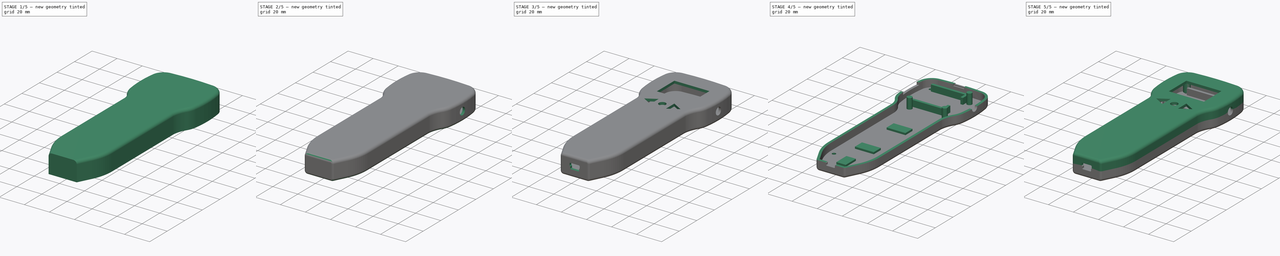
[diagram: build sequence overview — one tinted view per stage of 5, left to right]
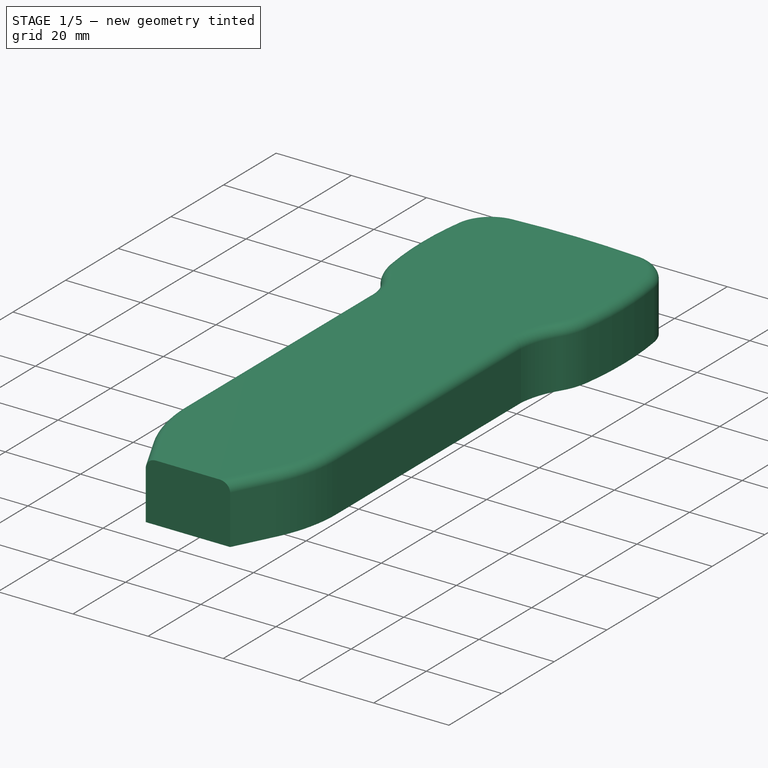
[diagram: stage 1 of 5 — iso view after this stage's code; geometry added in this stage tinted green]
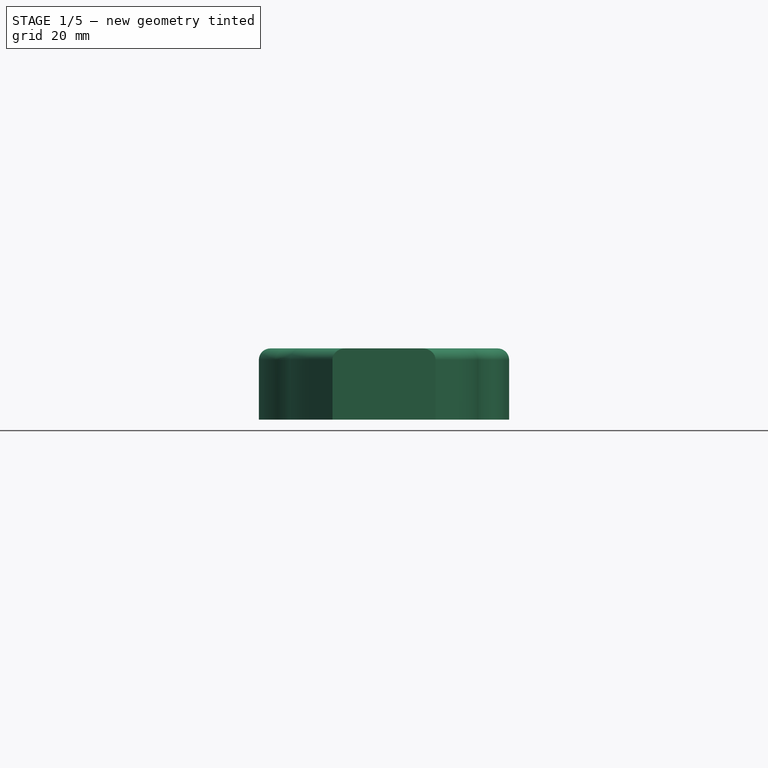
[diagram: stage 1 of 5 — front view after this stage's code; geometry added in this stage tinted green]
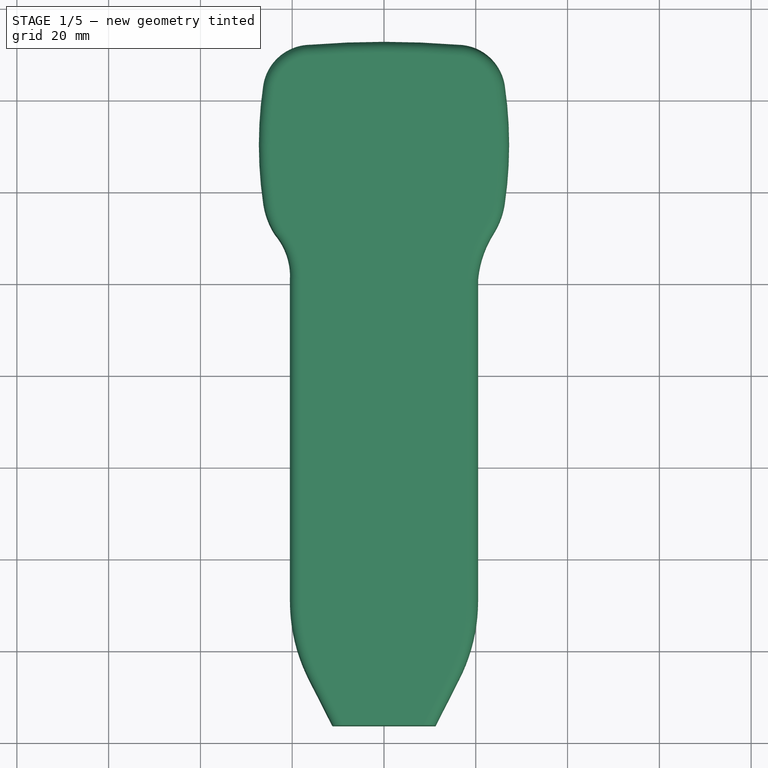
[diagram: stage 1 of 5 — top view after this stage's code; geometry added in this stage tinted green]
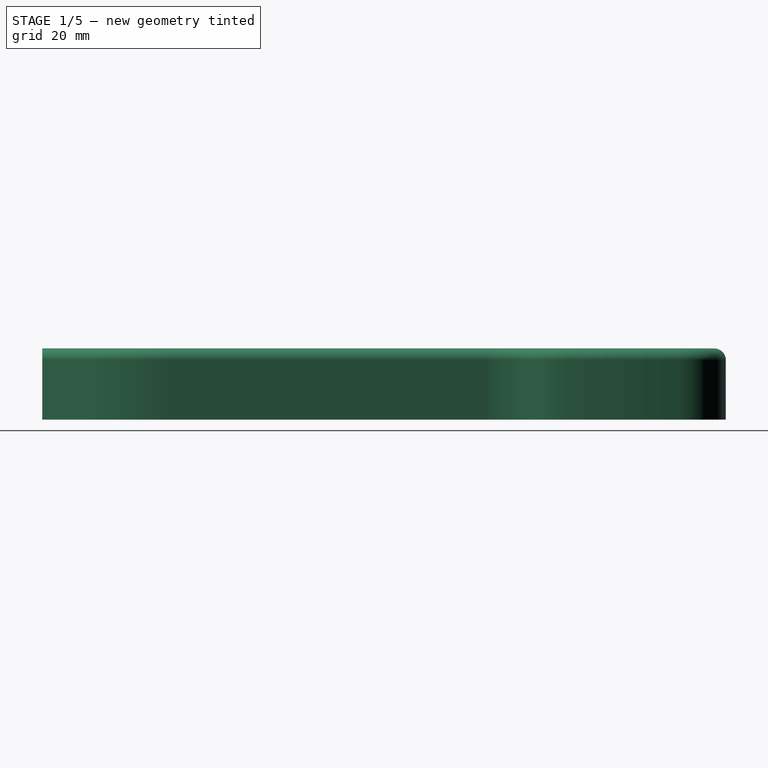
[diagram: stage 1 of 5 — right view after this stage's code; geometry added in this stage tinted green]
FCSTD DOCUMENT  (FreeCAD 0.16R5206 (Git))
Label: mote_inspector_v_2
License: CreativeCommons Attribution-ShareAlike
LicenseURL: http://creativecommons.org/licenses/by-sa/4.0/
objects: Sketcher::SketchObject×13, PartDesign::Pad×9, Part::Feature×8, Part::Cut×6, Part::Fillet×5, PartDesign::Pocket×4, Part::FeaturePython×3, App::DocumentObjectGroup×2, Part::Offset×1, Part::Mirroring×1
note: 63 computed .brp shape members not serialized (recipe doc carries the construction recipe); baked Part::Feature solids carry a one-line shape summary decoded from their .brp

FEATURE [Sketcher::SketchObject] Sketch031  label="Sketch01"
  sketch-geometry (20):
    g0: LineSegment [constr] StartX=-16 StartY=90 StartZ=0 EndX=16 EndY=90 EndZ=0
    g1: LineSegment StartX=18.5 StartY=41 StartZ=0 EndX=18.5 EndY=-29 EndZ=0
    g2: LineSegment StartX=-18.5 StartY=-29 StartZ=0 EndX=-18.5 EndY=41 EndZ=0
    g3: ArcOfCircle CenterX=15.936 CenterY=81.5002 CenterZ=0 NormalX=0 NormalY=0 NormalZ=1 Radius=8.5 StartAngle=0.147008 EndAngle=1.56326
    g4: ArcOfCircle CenterX=-15.936 CenterY=81.5002 CenterZ=0 NormalX=0 NormalY=0 NormalZ=1 Radius=8.5 StartAngle=1.57833 EndAngle=2.98878
    g5: ArcOfCircle CenterX=9.5 CenterY=60 CenterZ=0 NormalX=0 NormalY=0 NormalZ=1 Radius=15 StartAngle=5.72065 EndAngle=6.13558
    g6: ArcOfCircle CenterX=-9.5 CenterY=60 CenterZ=0 NormalX=0 NormalY=0 NormalZ=1 Radius=15 StartAngle=3.28919 EndAngle=3.70413
    g7: LineSegment [constr] StartX=15.936 StartY=81.5002 StartZ=0 EndX=-15.936 EndY=81.5002 EndZ=0
    g8: ArcOfCircle CenterX=42.9176 CenterY=38.9306 CenterZ=0 NormalX=0 NormalY=0 NormalZ=1 Radius=24.5051 StartAngle=2.57906 EndAngle=3.05704
    g9: ArcOfCircle CenterX=-34.482 CenterY=41.7593 CenterZ=0 NormalX=0 NormalY=0 NormalZ=1 Radius=16 StartAngle=6.23571 EndAngle=6.97774
    g10: LineSegment [constr] StartX=9.5 StartY=60 StartZ=0 EndX=-9.5 EndY=60 EndZ=0
    g11: ArcOfCircle CenterX=-59.7389 CenterY=70.2946 CenterZ=0 NormalX=0 NormalY=0 NormalZ=1 Radius=85 StartAngle=6.13558 EndAngle=6.43019
    g12: ArcOfCircle CenterX=59.7389 CenterY=70.2941 CenterZ=0 NormalX=0 NormalY=0 NormalZ=1 Radius=85 StartAngle=2.994 EndAngle=3.28919
    g13: LineSegment [constr] StartX=-24.3369 StartY=82.7941 StartZ=0 EndX=-24.3369 EndY=57.7941 EndZ=0
    g14: ArcOfCircle CenterX=-17.3536 CenterY=-29 CenterZ=0 NormalX=0 NormalY=0 NormalZ=1 Radius=35.8536 StartAngle=5.81289 EndAngle=6.28319
    g15: ArcOfCircle CenterX=17.3536 CenterY=-29 CenterZ=0 NormalX=0 NormalY=0 NormalZ=1 Radius=35.8536 StartAngle=3.14159 EndAngle=3.61189
    g16: ArcOfCircle CenterX=0 CenterY=-109.359 CenterZ=0 NormalX=0 NormalY=0 NormalZ=1 Radius=200 StartAngle=1.49071 EndAngle=1.65088
    g17: LineSegment StartX=14.6075 StartY=-45.2472 StartZ=0 EndX=10 EndY=-54.3109 EndZ=0
    g18: LineSegment StartX=-14.6075 StartY=-45.2472 StartZ=0 EndX=-10 EndY=-54.3109 EndZ=0
    g19: LineSegment StartX=-10 StartY=-54.3109 StartZ=0 EndX=10 EndY=-54.3109 EndZ=0
  constraints (62):
    c: Horizontal(g0)
    c: Vertical(g1)
    c: Equal(g6,g5)
    c: Symmetric(g0,g0,g-2)
    c: DistanceX(g0) = 32
    c: Radius(g4) = 8.5
    c: Horizontal(g7)
    c: Coincident(g4,g7)
    c: Coincident(g3,g7)
    c: DistanceY(g0) = 90
    c: Symmetric(g2,g1,g-2)
    c: Coincident(g8,g1)
    c: Coincident(g8,g5)
    c: Tangent(g8,g5)
    c: Coincident(g9,g2)
    c: Coincident(g9,g6)
    c: DistanceX(g1,g2) = -37
    c: Radius(g9) = 16
    c: Radius(g5) = 15
    c: Equal(g1,g2)
    c: Coincident(g10,g5)
    c: Coincident(g10,g6)
    c: Symmetric(g6,g5,g-2)
    c: DistanceX(g10) = -19
    c: Coincident(g11,g3)
    c: Coincident(g11,g5)
    c: Tangent(g3,g11)
    c: Tangent(g5,g11)
    c: DistanceY(g6) = 60
    c: Radius(g11) = 85
    c: Coincident(g12,g4)
    c: Coincident(g12,g6)
    c: Equal(g12,g11)
    c: Coincident(g13,g4)
    c: Coincident(g13,g6)
    c: Vertical(g13)
    c: Coincident(g4,g0)
    c: Coincident(g3,g0)
    c: Equal(g3,g4)
    c: DistanceY(g13) = -25
    c: Tangent(g1,g14) = 1.5708
    c: Tangent(g2,g15) = 1.5708
    c: Symmetric(g6,g5,g-2)
    c: DistanceY(g2) = 41
    c: DistanceY(g5) = 52
    c: Symmetric(g14,g15,g-2)
    c: Coincident(g16,g0)
    c: Coincident(g16,g0)
    c: Radius(g16) = 200
    c: Coincident(g17,g14)
    c: Coincident(g18,g15)
    c: Coincident(g19,g18)
    c: Coincident(g19,g17)
    c: Horizontal(g19)
    c: Symmetric(g17,g18,g-2)
    c: Tangent(g17,g14)
    c: DistanceY(g1) = -70
    c: DistanceX(g19) = 20
    c: Tangent(g6,g12)
    c: DistanceY(g17) = -54.3109
    c: Equal(g18,g17)
    c: Distance(g18) = 10.1676
FEATURE [PartDesign::Pad] Pad
  Length = 11.5
  Length2 = 100
  Midplane = true
  Sketch = -> Sketch031
  Type = 0
FEATURE [Part::Feature] Part__Feature  label="battery"
  Placement = pos=(1.7475e-05,2.94176,-0.578884) rot=(0,0,1;0rad)
  shape: bbox 34.3 x 64.5 x 5 mm, 10 faces (baked)
FEATURE [Part::Feature] Part__Feature001  label="oled_2864"
  Placement = pos=(4.00451e-06,67.6306,4.23111) rot=(0,0,1;0rad)
  shape: bbox 35.7 x 35.7 x 4.75 mm, 19 faces (baked)
FEATURE [Part::Feature] Part__Feature003  label="battery_charger"
  Placement = pos=(1.34702e-05,-41.4823,-2.55) rot=(0,0,1;0rad)
  shape: bbox 19.2 x 27.41 x 5.37 mm, 28 faces (baked)
FEATURE [Part::Feature] Part__Feature004  label="moteino"
  Placement = pos=(-7.66436,70.8293,-2.64239) rot=(0,0,-1;1.5708rad)
  shape: bbox 41 x 23.4 x 5.78 mm, 12 faces (baked)
FEATURE [Part::Feature] Part__Feature005  label="antena_connector"
  Placement = pos=(32.533,68.7327,0.110749) rot=(0,-1,0;1.5708rad)
  shape: bbox 11.5 x 8 x 9.238 mm, 10 faces (baked)
FEATURE [Part::Feature] Part__Feature006  label="buttons"
  Placement = pos=(0,43.5931,1.20382) rot=(0,0,1;0rad)
  shape: bbox 30.8 x 10.8 x 6.6 mm, 27 faces (baked)
FEATURE [Part::Feature] Part__Feature007  label="kill_switch"
  Placement = pos=(-0.913024,85.9801,0.513217) rot=(0,0.707107,0.707107;3.14159rad)
  shape: bbox 12.2 x 6.9 x 9 mm, 16 faces (baked)
FEATURE [Part::FeaturePython] Clone  label="Clone of Pad"  # Draft clone (typed FeaturePython)
  Objects = -> [Pad]
  Scale = (1,1,1)
FEATURE [App::DocumentObjectGroup] Construcci__n
  Group = -> [Clone]
FEATURE [Part::Offset] Offset
  Fill = false
  Intersection = false
  Join = 2
  Mode = 0
  SelfIntersection = false
  Source = -> Clone
  Value = 2
FEATURE [Part::Cut] Cut
  Base = -> Offset
  Tool = -> Pad
FEATURE [Part::Fillet] Fillet
  Base = -> Cut
  Edges = 1 edges r=2.5: [Edge8]
FEATURE [Part::Fillet] Fillet001
  Base = -> Fillet
  Edges = 1 edges r=2.45: [Edge38]
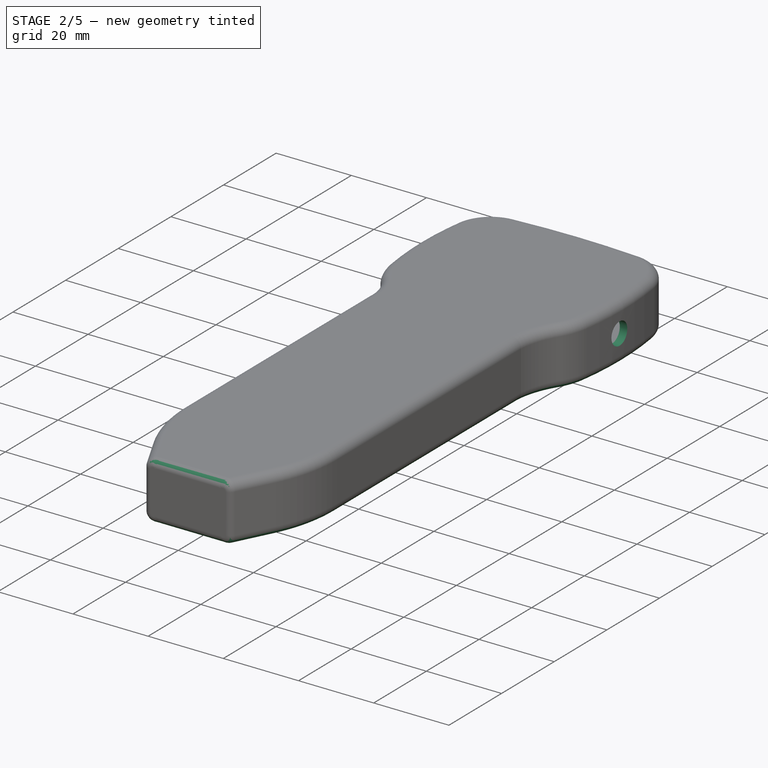
[diagram: stage 2 of 5 — iso view after this stage's code; geometry added in this stage tinted green]
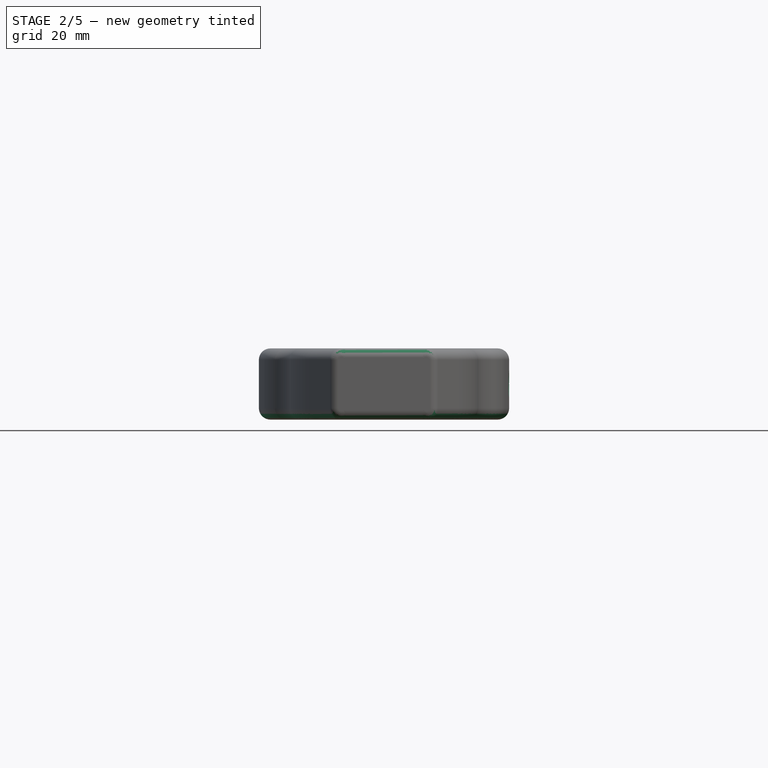
[diagram: stage 2 of 5 — front view after this stage's code; geometry added in this stage tinted green]
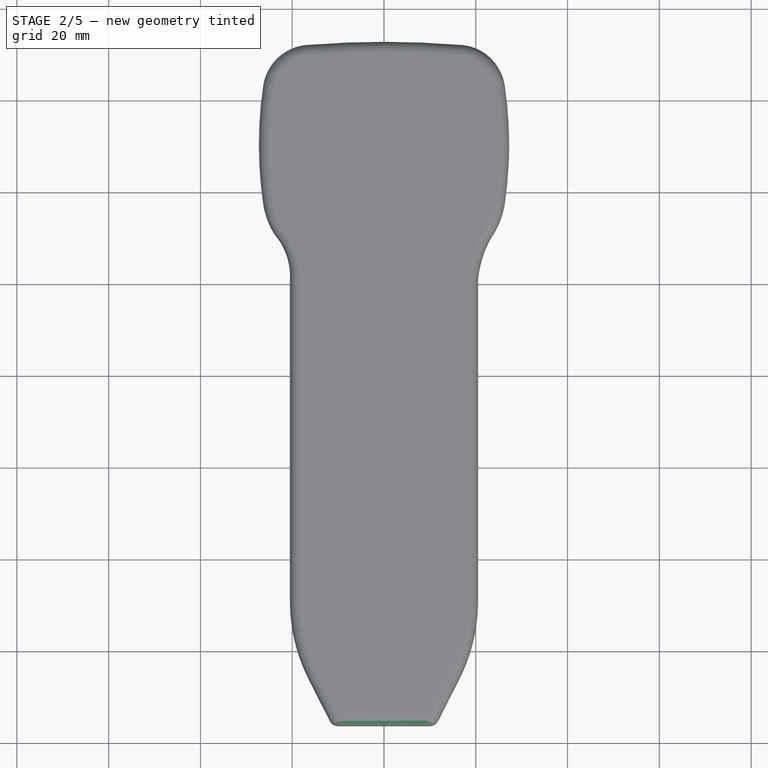
[diagram: stage 2 of 5 — top view after this stage's code; geometry added in this stage tinted green]
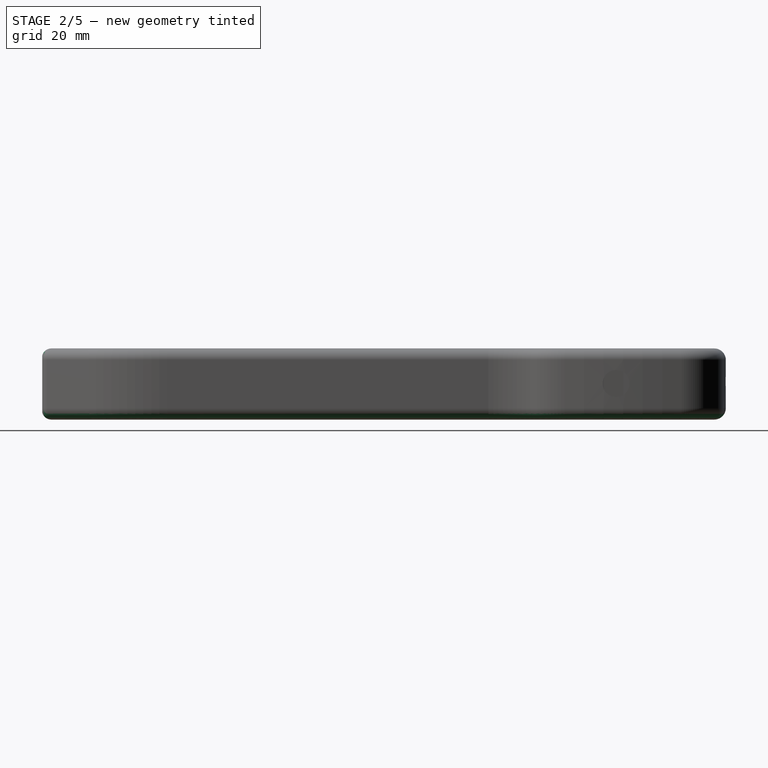
[diagram: stage 2 of 5 — right view after this stage's code; geometry added in this stage tinted green]
FEATURE [Part::FeaturePython] Clone004  label="Clone of switch001"  # WARN: FeaturePython — macro-defined, semantics opaque (R4)
  Placement = pos=(0,0,1) rot=(0,0,1;0rad)
  Scale = (1,1,1)
FEATURE [Part::Fillet] Fillet002
  Base = -> Fillet001
  Edges = 1 edges r=2.5: [Edge67]
FEATURE [Part::Fillet] Fillet003
  Base = -> Fillet002
  Edges = 1 edges r=2.45: [Edge17]
FEATURE [Part::Fillet] Fillet004
  Base = -> Fillet003
  Edges = 1 edges r=2: [Edge1]
FEATURE [Part::Feature] Part__Feature008  label="antena_connector001"
  Placement = pos=(32.533,68.7327,0.110749) rot=(0,-1,0;1.5708rad)
  shape: bbox 11.5 x 8 x 9.238 mm, 10 faces (baked)
FEATURE [Part::Cut] Cut001
  Base = -> Fillet004
  Tool = -> Part__Feature008
FEATURE [Part::Cut] Cut002
  Base = -> Cut001
  Tool = -> Clone004
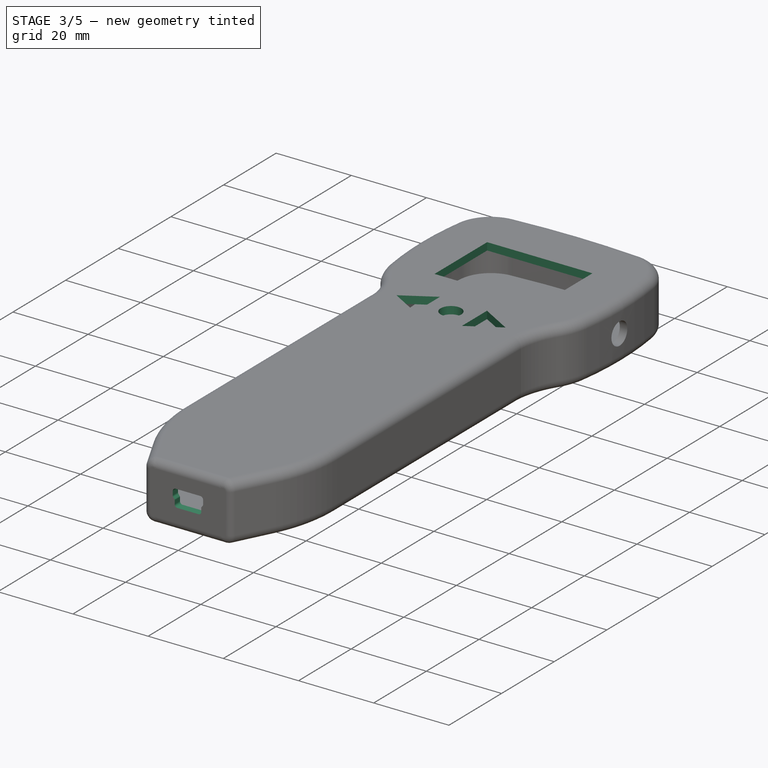
[diagram: stage 3 of 5 — iso view after this stage's code; geometry added in this stage tinted green]
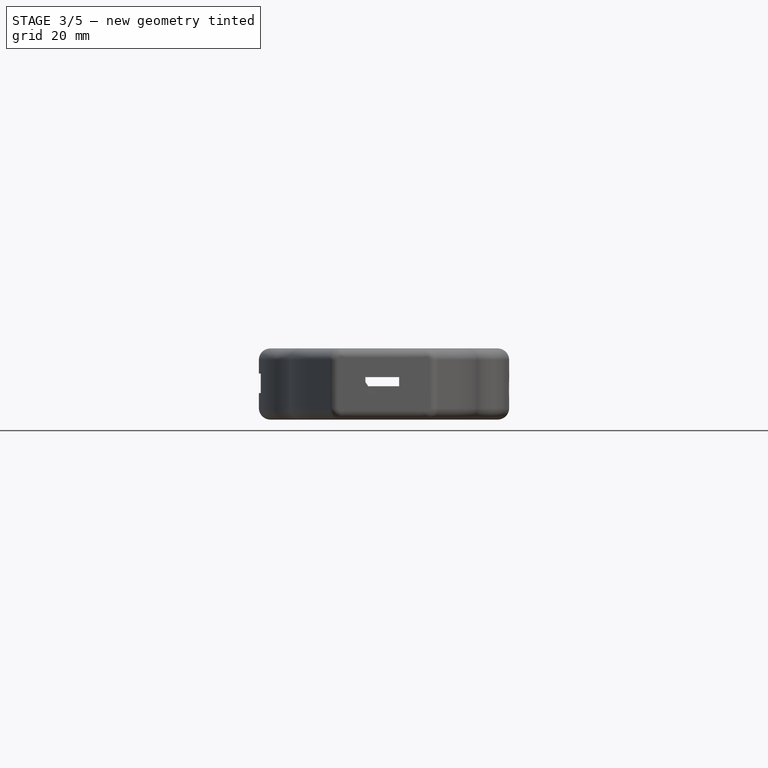
[diagram: stage 3 of 5 — front view after this stage's code; geometry added in this stage tinted green]
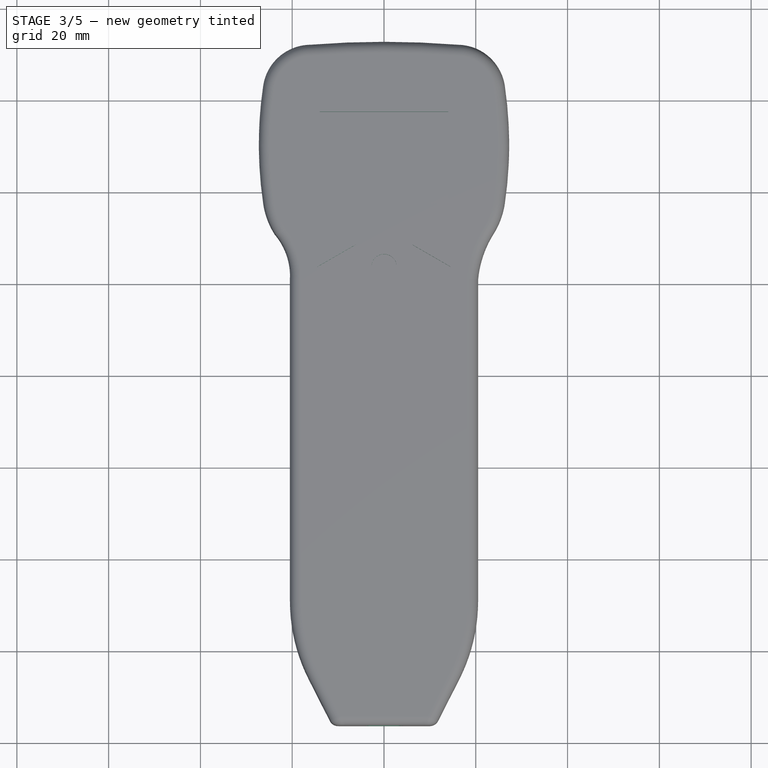
[diagram: stage 3 of 5 — top view after this stage's code; geometry added in this stage tinted green]
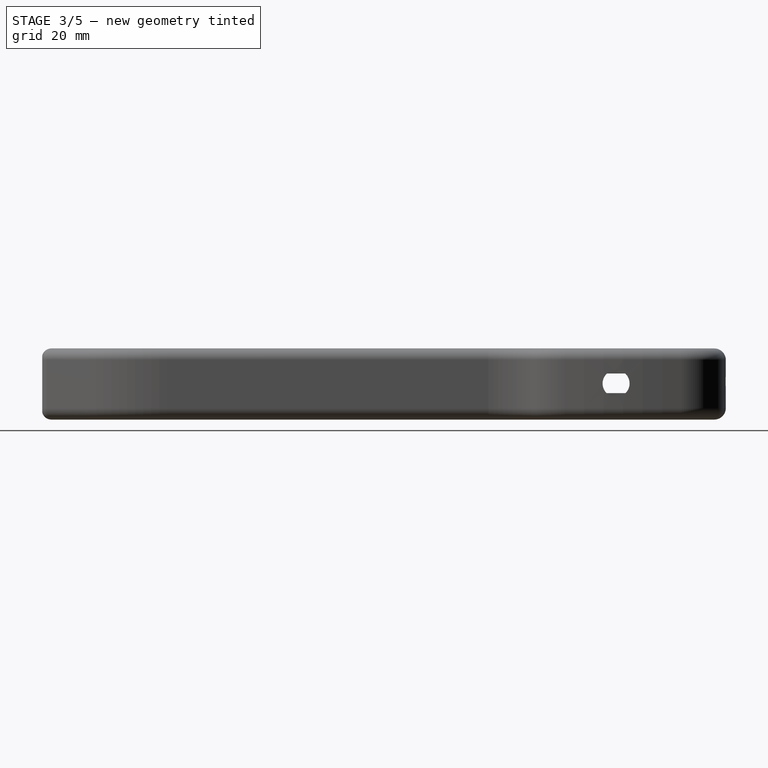
[diagram: stage 3 of 5 — right view after this stage's code; geometry added in this stage tinted green]
FEATURE [Sketcher::SketchObject] Sketch034  label="Sketch04"
  Placement = pos=(-29,0,0) rot=(0.57735,-0.57735,-0.57735;2.0944rad)
  sketch-geometry (4):
    g0: LineSegment StartX=-79.8 StartY=2.3 StartZ=0 EndX=-61.8 EndY=2.3 EndZ=0
    g1: LineSegment StartX=-61.8 StartY=2.3 StartZ=0 EndX=-61.8 EndY=-2 EndZ=0
    g2: LineSegment StartX=-61.8 StartY=-2 StartZ=0 EndX=-79.8 EndY=-2 EndZ=0
    g3: LineSegment StartX=-79.8 StartY=-2 StartZ=0 EndX=-79.8 EndY=2.3 EndZ=0
  constraints (12):
    c: Coincident(g0,g1)
    c: Coincident(g1,g2)
    c: Coincident(g2,g3)
    c: Coincident(g3,g0)
    c: Horizontal(g0)
    c: Horizontal(g2)
    c: Vertical(g1)
    c: Vertical(g3)
    c: DistanceY(g1) = -4.3
    c: DistanceX(g0) = 18
    c: DistanceX(g0) = -61.8
    c: DistanceY(g0) = 2.3
FEATURE [PartDesign::Pad] Pad001
  Length = 10
  Length2 = 100
  Placement = pos=(-29,0,0) rot=(0.57735,-0.57735,-0.57735;2.0944rad)
  Reversed = true
  Sketch = -> Sketch034
  Type = 0
FEATURE [Part::Cut] Cut003
  Base = -> Cut002
  Tool = -> Pad001
FEATURE [Sketcher::SketchObject] Sketch032  label="Sketch02"
  Placement = pos=(0,0,7.75) rot=(0,0,1;0rad)
  Support = -> Cut003 [Face21]
  sketch-geometry (16):
    g0: LineSegment StartX=-14 StartY=77.35 StartZ=0 EndX=14 EndY=77.35 EndZ=0
    g1: LineSegment StartX=14 StartY=77.35 StartZ=0 EndX=14 EndY=57.35 EndZ=0
    g2: LineSegment StartX=14 StartY=57.35 StartZ=0 EndX=-14 EndY=57.35 EndZ=0
    g3: LineSegment StartX=-14 StartY=57.35 StartZ=0 EndX=-14 EndY=77.35 EndZ=0
    g4: Circle CenterX=0 CenterY=43.6 CenterZ=0 NormalX=0 NormalY=0 NormalZ=1 Radius=2.75
    g5: Circle [constr] CenterX=-9 CenterY=43.6 CenterZ=0 NormalX=0 NormalY=0 NormalZ=1 Radius=2.75
    g6: Circle [constr] CenterX=9 CenterY=43.6 CenterZ=0 NormalX=0 NormalY=0 NormalZ=1 Radius=2.75
    g7: LineSegment [constr] StartX=-9 StartY=43.6 StartZ=0 EndX=9 EndY=43.6 EndZ=0
    g8: LineSegment StartX=-6.25 StartY=38.8369 StartZ=0 EndX=-6.25 EndY=48.3631 EndZ=0
    g9: LineSegment StartX=-6.25 StartY=48.3631 StartZ=0 EndX=-14.5 EndY=43.6 EndZ=0
    g10: LineSegment StartX=-14.5 StartY=43.6 StartZ=0 EndX=-6.25 EndY=38.8369 EndZ=0
    g11: Circle [constr] CenterX=-9 CenterY=43.6 CenterZ=0 NormalX=0 NormalY=0 NormalZ=1 Radius=5.5
    g12: LineSegment StartX=6.25 StartY=38.8369 StartZ=0 EndX=14.5 EndY=43.6 EndZ=0
    g13: LineSegment StartX=14.5 StartY=43.6 StartZ=0 EndX=6.25 EndY=48.3631 EndZ=0
    g14: LineSegment StartX=6.25 StartY=48.3631 StartZ=0 EndX=6.25 EndY=38.8369 EndZ=0
    g15: Circle [constr] CenterX=9 CenterY=43.6 CenterZ=0 NormalX=0 NormalY=0 NormalZ=1 Radius=5.5
  constraints (45):
    c: Coincident(g0,g1)
    c: Coincident(g1,g2)
    c: Coincident(g2,g3)
    c: Coincident(g3,g0)
    c: Horizontal(g0)
    c: Horizontal(g2)
    c: Vertical(g1)
    c: Vertical(g3)
    c: Symmetric(g0,g0,g-2)
    c: DistanceX(g0) = 28
    c: DistanceY(g1) = -20
    c: DistanceY(g1) = 57.35
    c: PointOnObject(g4,g-2)
    c: Equal(g5,g4)
    c: Equal(g4,g6)
    c: Coincident(g7,g5)
    c: Horizontal(g7)
    c: Coincident(g7,g6)
    c: PointOnObject(g4,g7)
    c: DistanceY(g4) = 43.6
    c: Symmetric(g6,g5,g-2)
    c: DistanceX(g6) = 9
    c: Radius(g4) = 2.75
    c: Coincident(g8,g9)
    c: Coincident(g9,g10)
    c: Coincident(g10,g8)
    c: Equal(g8,g9)
    c: Equal(g8,g10)
    c: PointOnObject(g8,g11)
    c: PointOnObject(g9,g11)
    c: PointOnObject(g10,g11)
    c: Coincident(g11,g5)
    c: Coincident(g12,g13)
    c: Coincident(g13,g14)
    c: Coincident(g14,g12)
    c: Equal(g12,g13)
    c: Equal(g12,g14)
    c: PointOnObject(g12,g15)
    c: PointOnObject(g13,g15)
    c: PointOnObject(g14,g15)
    c: Coincident(g15,g6)
    c: Vertical(g8)
    c: Vertical(g14)
    c: Tangent(g8,g5)
    c: Tangent(g14,g6)
FEATURE [PartDesign::Pocket] Pocket
  Length = 5
  Sketch = -> Sketch032
  Type = 0
FEATURE [Sketcher::SketchObject] Sketch033  label="Sketch03"
  Placement = pos=(0,-56.3109,0) rot=(1,0,0;1.5708rad)
  Support = -> Pocket [Face1]
  sketch-geometry (16):
    g0: LineSegment StartX=-3.25 StartY=2.4 StartZ=0 EndX=3.25 EndY=2.4 EndZ=0
    g1: LineSegment StartX=4.05 StartY=1.6 StartZ=0 EndX=4.05 EndY=0.6 EndZ=0
    g2: LineSegment StartX=3.52669 StartY=-0.423313 StartZ=0 EndX=3.52669 EndY=-1.42331 EndZ=0
    g3: LineSegment StartX=2.85 StartY=-2.1 StartZ=0 EndX=-2.85 EndY=-2.1 EndZ=0
    g4: LineSegment StartX=-3.52669 StartY=-1.42331 StartZ=0 EndX=-3.52669 EndY=-0.423313 EndZ=0
    g5: LineSegment StartX=-4.05 StartY=0.6 StartZ=0 EndX=-4.05 EndY=1.6 EndZ=0
    g6: ArcOfCircle CenterX=-3.25 CenterY=1.6 CenterZ=0 NormalX=0 NormalY=0 NormalZ=1 Radius=0.8 StartAngle=1.5708 EndAngle=3.14159
    g7: ArcOfCircle CenterX=-2.85 CenterY=-1.42331 CenterZ=0 NormalX=0 NormalY=0 NormalZ=1 Radius=0.676687 StartAngle=3.14159 EndAngle=4.71239
    g8: ArcOfCircle CenterX=2.85 CenterY=-1.42331 CenterZ=0 NormalX=0 NormalY=0 NormalZ=1 Radius=0.676687 StartAngle=4.71239 EndAngle=6.28319
    g9: ArcOfCircle CenterX=3.25 CenterY=1.6 CenterZ=0 NormalX=0 NormalY=0 NormalZ=1 Radius=0.8 StartAngle=2.1548e-08 EndAngle=1.5708
    g10: ArcOfCircle CenterX=3.36851 CenterY=0.6 CenterZ=0 NormalX=0 NormalY=0 NormalZ=1 Radius=0.681493 StartAngle=5.61668 EndAngle=6.28319
    g11: ArcOfCircle CenterX=3.91786 CenterY=-0.423313 CenterZ=0 NormalX=0 NormalY=0 NormalZ=1 Radius=0.39117 StartAngle=2.26963 EndAngle=3.14159
    g12: LineSegment StartX=3.90415 StartY=0.178672 StartZ=0 EndX=3.66621 EndY=-0.123836 EndZ=0
    g13: ArcOfCircle CenterX=-3.36851 CenterY=0.6 CenterZ=0 NormalX=0 NormalY=0 NormalZ=1 Radius=0.681493 StartAngle=3.14159 EndAngle=3.91953
    g14: LineSegment StartX=-3.85398 StartY=0.12172 StartZ=0 EndX=-3.61292 EndY=-0.17831 EndZ=0
    g15: ArcOfCircle CenterX=-3.91786 CenterY=-0.423313 CenterZ=0 NormalX=0 NormalY=0 NormalZ=1 Radius=0.39117 StartAngle=1.0513e-08 EndAngle=0.67684
  constraints (55):
    c: Vertical(g2)
    c: Vertical(g5)
    c: Coincident(g6,g0)
    c: Coincident(g6,g5)
    c: Vertical(g1)
    c: Vertical(g4)
    c: Coincident(g7,g4)
    c: Coincident(g7,g3)
    c: Coincident(g8,g2)
    c: Coincident(g8,g3)
    c: Coincident(g9,g0)
    c: Coincident(g9,g1)
    c: Coincident(g10,g1)
    c: Tangent(g0,g9)
    c: Tangent(g6,g0)
    c: Tangent(g8,g2)
    c: Tangent(g3,g8)
    c: Tangent(g7,g3)
    c: Tangent(g4,g7)
    c: Tangent(g5,g6)
    c: Tangent(g1,g9)
    c: Tangent(g10,g1)
    c: Coincident(g11,g2)
    c: Tangent(g11,g2)
    c: Equal(g1,g5)
    c: Equal(g2,g4)
    c: Symmetric(g0,g0,g-2)
    c: Symmetric(g3,g3,g-2)
    c: DistanceX(g3) = -5.7
    c: DistanceX(g0) = 6.5
    c: DistanceY(g3) = -2.1
    c: DistanceY(g0) = 2.4
    c: Radius(g9) = 0.8
    c: Equal(g9,g6)
    c: Equal(g5,g1)
    c: Coincident(g12,g10)
    c: Coincident(g12,g11)
    c: DistanceY(g1) = -1
    c: Radius(g11) = 0.39117
    c: Distance(g12) = 0.384874
    c: Radius(g10) = 0.681493
    c: DistanceY(g2) = -1
    c: Radius(g8) = 0.676687
    c: Equal(g7,g8)
    c: Coincident(g13,g5)
    c: Coincident(g14,g13)
    c: Coincident(g15,g14)
    c: Coincident(g15,g4)
    c: Tangent(g4,g15)
    c: Tangent(g13,g5)
    c: Equal(g15,g11)
    c: Equal(g14,g12)
    c: Equal(g13,g10)
    c: Tangent(g14,g15)
    c: Tangent(g12,g10)
FEATURE [PartDesign::Pocket] Pocket001
  Length = 5
  Sketch = -> Sketch033
  Type = 0
FEATURE [Part::FeaturePython] Clone005  label="Clone of Pocket001"  # Draft clone (typed FeaturePython)
  Objects = -> [Pocket001]
  Scale = (1,1,1)
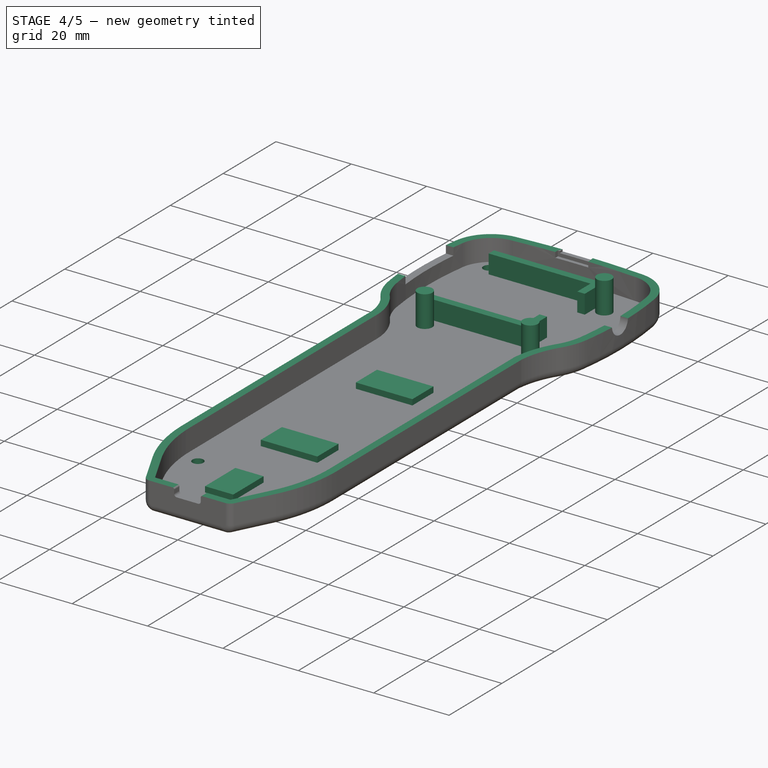
[diagram: stage 4 of 5 — iso view after this stage's code; geometry added in this stage tinted green]
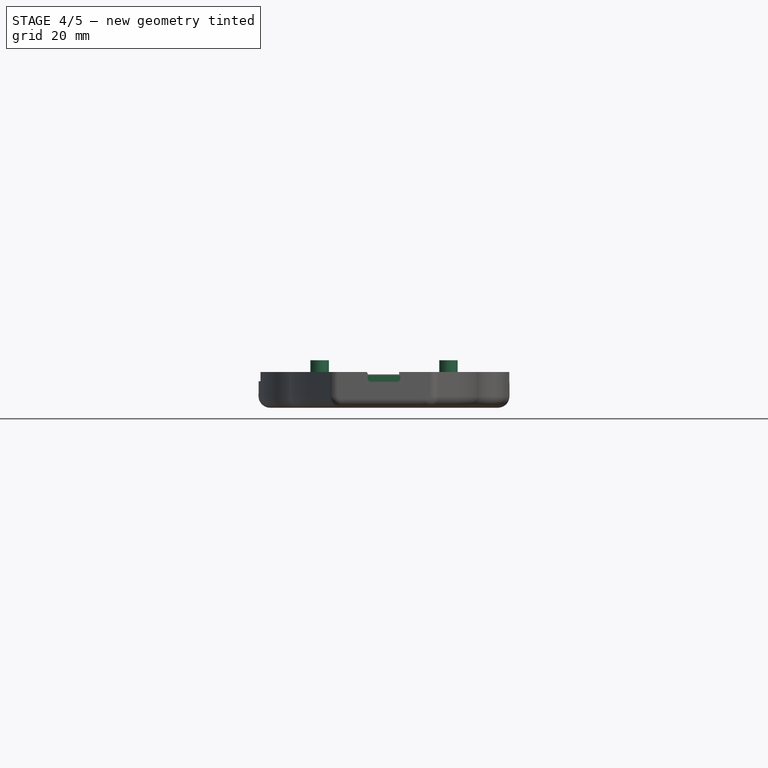
[diagram: stage 4 of 5 — front view after this stage's code; geometry added in this stage tinted green]
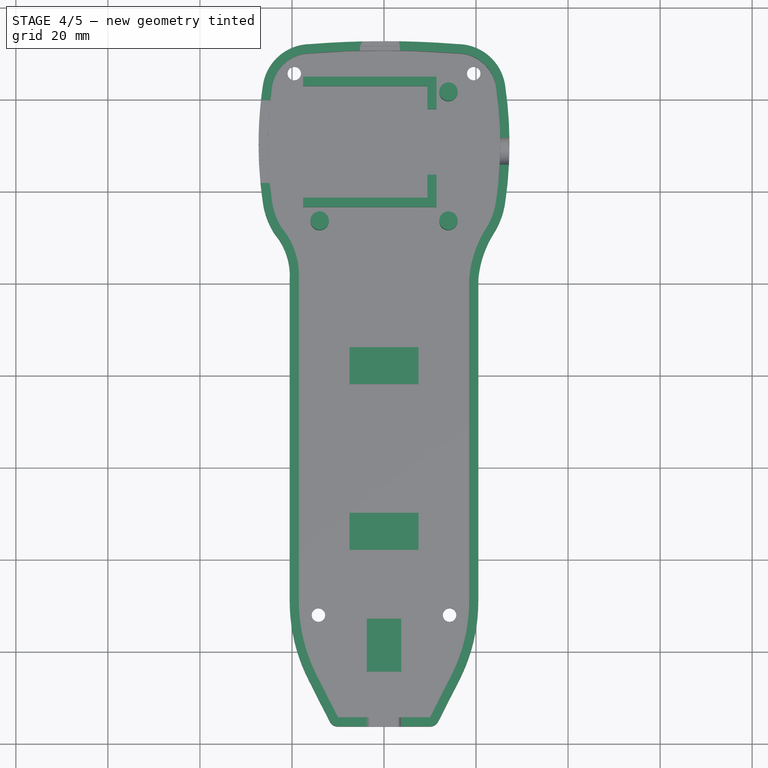
[diagram: stage 4 of 5 — top view after this stage's code; geometry added in this stage tinted green]
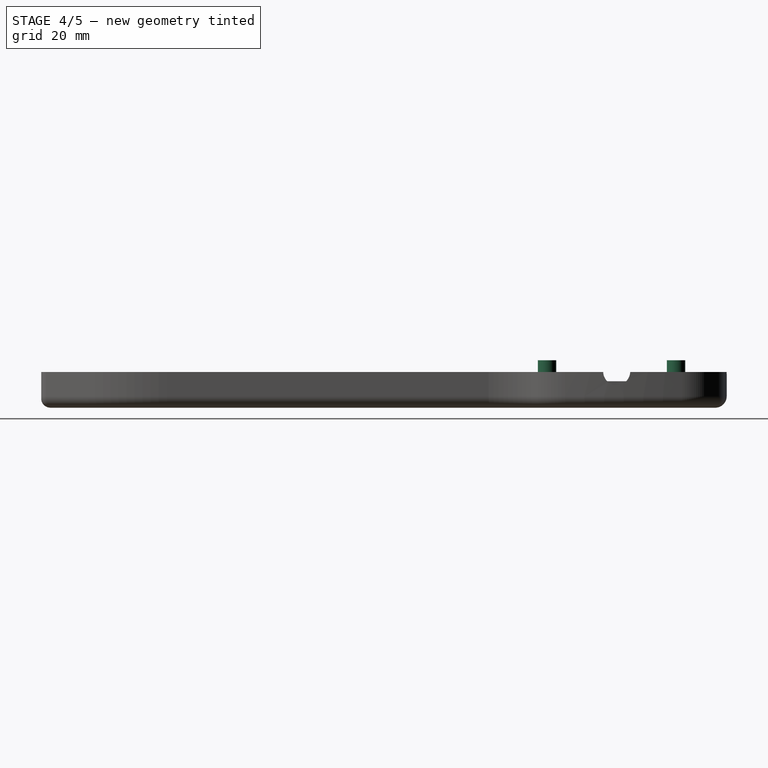
[diagram: stage 4 of 5 — right view after this stage's code; geometry added in this stage tinted green]
FEATURE [Sketcher::SketchObject] Sketch
  sketch-geometry (4):
    g0: LineSegment StartX=-35 StartY=97.4 StartZ=0 EndX=35 EndY=97.4 EndZ=0
    g1: LineSegment StartX=35 StartY=97.4 StartZ=0 EndX=35 EndY=-62.6 EndZ=0
    g2: LineSegment StartX=35 StartY=-62.6 StartZ=0 EndX=-35 EndY=-62.6 EndZ=0
    g3: LineSegment StartX=-35 StartY=-62.6 StartZ=0 EndX=-35 EndY=97.4 EndZ=0
  constraints (12):
    c: Coincident(g0,g1)
    c: Coincident(g1,g2)
    c: Coincident(g2,g3)
    c: Coincident(g3,g0)
    c: Horizontal(g0)
    c: Horizontal(g2)
    c: Vertical(g1)
    c: Vertical(g3)
    c: DistanceX(g0) = 70
    c: DistanceY(g1) = -160
    c: DistanceY(g0) = 97.4
    c: Symmetric(g0,g0,g-2)
FEATURE [PartDesign::Pad] Pad002
  Length = 10
  Length2 = 100
  Sketch = -> Sketch
  Type = 0
FEATURE [Part::Cut] Cut004
  Base = -> Clone005
  Tool = -> Pad002
FEATURE [PartDesign::Pad] Pad004
  Length = 5
  Length2 = 100
  Sketch = -> Sketch041
  Type = 0
FEATURE [Sketcher::SketchObject] Sketch043  label="Sketch07"
  Placement = pos=(0,0,-5.75) rot=(0,0,1;0rad)
  Support = -> Pad004 [Face64]
  sketch-geometry (4):
    g0: Circle CenterX=-19.5 CenterY=85.7 CenterZ=0 NormalX=0 NormalY=0 NormalZ=1 Radius=1.456
    g1: Circle CenterX=19.5 CenterY=85.7 CenterZ=0 NormalX=0 NormalY=0 NormalZ=1 Radius=1.456
    g2: Circle CenterX=-14.25 CenterY=-32 CenterZ=0 NormalX=0 NormalY=0 NormalZ=1 Radius=1.456
    g3: Circle CenterX=14.25 CenterY=-32 CenterZ=0 NormalX=0 NormalY=0 NormalZ=1 Radius=1.456
  constraints (10):
    c: Equal(g2,g3)
    c: Equal(g3,g0)
    c: Equal(g0,g1)
    c: Radius(g0) = 1.456
    c: Symmetric(g0,g1,g-2)
    c: DistanceX(g0,g1) = 39
    c: DistanceY(g0) = 85.7
    c: Symmetric(g2,g3,g-2)
    c: DistanceX(g2,g3) = 28.5
    c: DistanceY(g2) = -32
FEATURE [PartDesign::Pocket] Pocket002
  Length = 5
  Sketch = -> Sketch043
  Type = 0
FEATURE [Sketcher::SketchObject] Sketch040  label="Sketch08"
  Placement = pos=(0,0,-5.75) rot=(0,0,1;0rad)
  Support = -> Pocket002 [Face68]
  sketch-geometry (13):
    g0: LineSegment StartX=-7.5 StartY=26.2 StartZ=0 EndX=7.5 EndY=26.2 EndZ=0
    g1: LineSegment StartX=7.5 StartY=26.2 StartZ=0 EndX=7.5 EndY=18.2 EndZ=0
    g2: LineSegment StartX=7.5 StartY=18.2 StartZ=0 EndX=-7.5 EndY=18.2 EndZ=0
    g3: LineSegment StartX=-7.5 StartY=18.2 StartZ=0 EndX=-7.5 EndY=26.2 EndZ=0
    g4: LineSegment StartX=-7.5 StartY=-9.8 StartZ=0 EndX=7.5 EndY=-9.8 EndZ=0
    g5: LineSegment StartX=7.5 StartY=-9.8 StartZ=0 EndX=7.5 EndY=-17.8 EndZ=0
    g6: LineSegment StartX=7.5 StartY=-17.8 StartZ=0 EndX=-7.5 EndY=-17.8 EndZ=0
    g7: LineSegment StartX=-7.5 StartY=-17.8 StartZ=0 EndX=-7.5 EndY=-9.8 EndZ=0
    g8: LineSegment StartX=-3.75 StartY=-32.8 StartZ=0 EndX=3.75 EndY=-32.8 EndZ=0
    g9: LineSegment StartX=3.75 StartY=-32.8 StartZ=0 EndX=3.75 EndY=-44.3 EndZ=0
    g10: LineSegment StartX=3.75 StartY=-44.3 StartZ=0 EndX=-3.75 EndY=-44.3 EndZ=0
    g11: LineSegment StartX=-3.75 StartY=-44.3 StartZ=0 EndX=-3.75 EndY=-32.8 EndZ=0
    g12: LineSegment [constr] StartX=7.5 StartY=-9.8 StartZ=0 EndX=7.5 EndY=18.2 EndZ=0
  constraints (39):
    c: Coincident(g0,g1)
    c: Coincident(g1,g2)
    c: Coincident(g2,g3)
    c: Coincident(g3,g0)
    c: Horizontal(g0)
    c: Horizontal(g2)
    c: Vertical(g1)
    c: Vertical(g3)
    c: Coincident(g4,g5)
    c: Coincident(g5,g6)
    c: Coincident(g6,g7)
    c: Coincident(g7,g4)
    c: Horizontal(g4)
    c: Horizontal(g6)
    c: Vertical(g5)
    c: Vertical(g7)
    c: Coincident(g8,g9)
    c: Coincident(g9,g10)
    c: Coincident(g10,g11)
    c: Coincident(g11,g8)
    c: Horizontal(g8)
    c: Horizontal(g10)
    c: Vertical(g9)
    c: Vertical(g11)
    c: Symmetric(g4,g4,g-2)
    c: Symmetric(g0,g0,g-2)
    c: Equal(g4,g0)
    c: Equal(g1,g5)
    c: Symmetric(g8,g8,g-2)
    c: DistanceX(g8) = 7.5
    c: DistanceY(g9) = -11.5
    c: DistanceY(g8) = -32.8
    c: DistanceY(g5) = -8
    c: DistanceX(g4) = 15
    c: Coincident(g12,g1)
    c: Vertical(g12)
    c: DistanceY(g4) = -9.8
    c: DistanceY(g12) = 28
    c: Coincident(g12,g4)
FEATURE [PartDesign::Pad] Pad005
  Length = 1.5
  Length2 = 100
  Sketch = -> Sketch040
  Type = 0
FEATURE [Sketcher::SketchObject] Sketch036  label="Sketch09"
  Placement = pos=(0,0,-5.75) rot=(0,0,1;0rad)
  Support = -> Pad005 [Face68]
  sketch-geometry (5):
    g0: Circle CenterX=14 CenterY=81.6329 CenterZ=0 NormalX=0 NormalY=0 NormalZ=1 Radius=2
    g1: Circle CenterX=14 CenterY=53.6 CenterZ=0 NormalX=0 NormalY=0 NormalZ=1 Radius=2
    g2: Circle CenterX=-13.991 CenterY=53.6 CenterZ=0 NormalX=0 NormalY=0 NormalZ=1 Radius=2
    g3: LineSegment [constr] StartX=14 StartY=53.6 StartZ=0 EndX=-13.991 EndY=53.6 EndZ=0
    g4: LineSegment [constr] StartX=14 StartY=53.6 StartZ=0 EndX=14 EndY=81.6329 EndZ=0
  constraints (13):
    c: Coincident(g3,g1)
    c: Coincident(g3,g2)
    c: Horizontal(g3)
    c: Coincident(g4,g1)
    c: Coincident(g4,g0)
    c: Vertical(g4)
    c: Equal(g1,g2)
    c: Equal(g2,g0)
    c: DistanceX(g1) = 14
    c: DistanceY(g1) = 53.6
    c: Radius(g1) = 2
    c: DistanceX(g3) = -27.991
    c: DistanceY(g4) = 28.0329
FEATURE [PartDesign::Pad] Pad006
  Length = 8.3
  Length2 = 100
  Sketch = -> Sketch036
  Type = 0
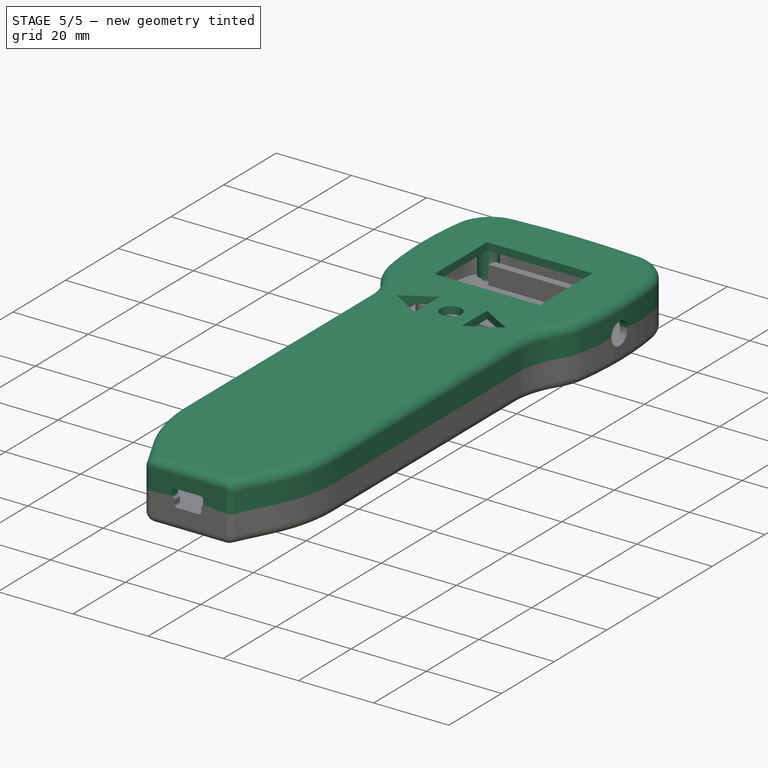
[diagram: stage 5 of 5 — iso view after this stage's code; geometry added in this stage tinted green]
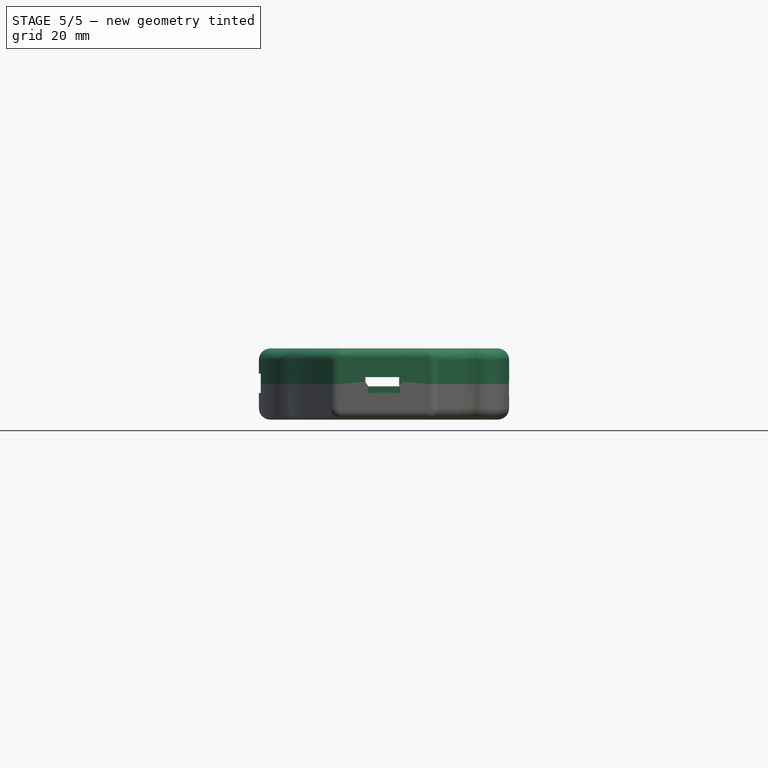
[diagram: stage 5 of 5 — front view after this stage's code; geometry added in this stage tinted green]
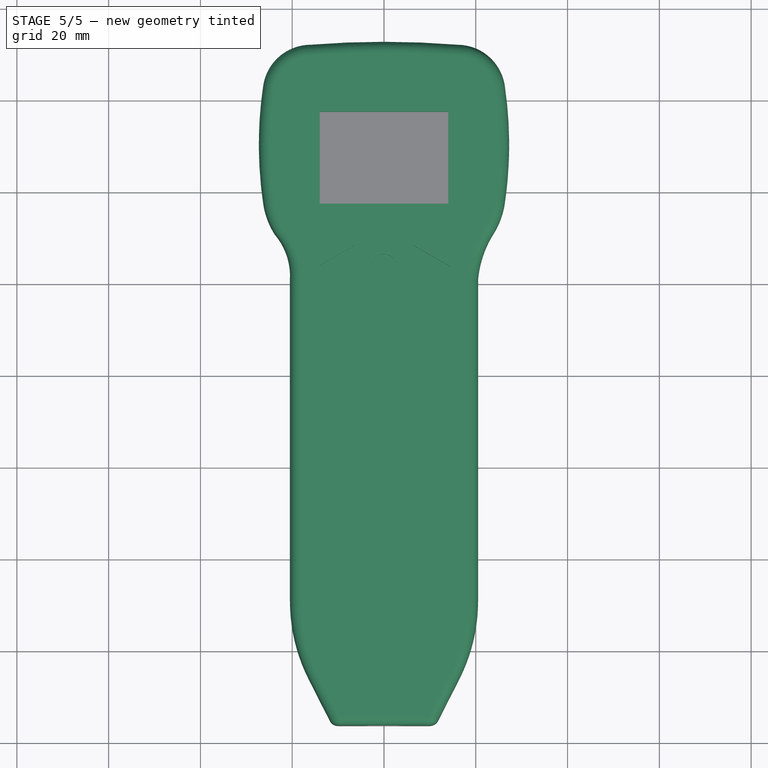
[diagram: stage 5 of 5 — top view after this stage's code; geometry added in this stage tinted green]
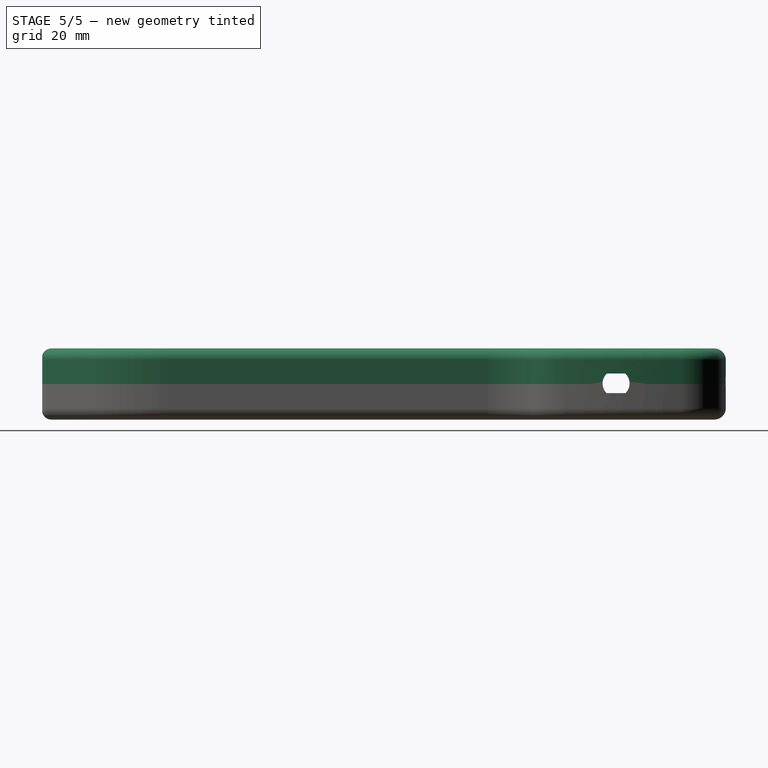
[diagram: stage 5 of 5 — right view after this stage's code; geometry added in this stage tinted green]
FEATURE [Part::Mirroring] Part__Mirroring  label="Pad002 (Mirror #1)"
  Base = (0,0,0)
  Normal = (0,0,1)
  Source = -> Pad002
FEATURE [App::DocumentObjectGroup] Construcci__n001
  Group = -> [Cut004]
FEATURE [Part::Cut] Cut005
  Base = -> Pocket001
  Tool = -> Part__Mirroring
FEATURE [Sketcher::SketchObject] Sketch042  label="Sketch05"
  Placement = pos=(0,0,5.75) rot=(1,0,0;3.14159rad)
  Support = -> Cut005 [Face78]
  sketch-geometry (10):
    g0: Circle CenterX=-19.5 CenterY=-85.7 CenterZ=0 NormalX=0 NormalY=0 NormalZ=1 Radius=1.43
    g1: Circle CenterX=-19.5 CenterY=-85.7 CenterZ=0 NormalX=0 NormalY=0 NormalZ=1 Radius=2.5
    g2: LineSegment [constr] StartX=-19.5 StartY=-85.7 StartZ=0 EndX=19.5 EndY=-85.7 EndZ=0
    g3: Circle CenterX=19.5 CenterY=-85.7 CenterZ=0 NormalX=0 NormalY=0 NormalZ=1 Radius=2.5
    g4: Circle CenterX=-14.25 CenterY=32 CenterZ=0 NormalX=0 NormalY=0 NormalZ=1 Radius=2.5
    g5: Circle CenterX=14.25 CenterY=32 CenterZ=0 NormalX=0 NormalY=0 NormalZ=1 Radius=2.5
    g6: LineSegment [constr] StartX=14.25 StartY=32 StartZ=0 EndX=-14.25 EndY=32 EndZ=0
    g7: Circle CenterX=-14.25 CenterY=32 CenterZ=0 NormalX=0 NormalY=0 NormalZ=1 Radius=1.43
    g8: Circle CenterX=14.25 CenterY=32 CenterZ=0 NormalX=0 NormalY=0 NormalZ=1 Radius=1.43
    g9: Circle CenterX=19.5 CenterY=-85.7 CenterZ=0 NormalX=0 NormalY=0 NormalZ=1 Radius=1.43
  constraints (24):
    c: Radius(g0) = 1.43
    c: Coincident(g1,g0)
    c: Radius(g1) = 2.5
    c: Coincident(g2,g0)
    c: Horizontal(g2)
    c: Symmetric(g2,g0,g-2)
    c: Coincident(g3,g2)
    c: Equal(g1,g3)
    c: Equal(g4,g1)
    c: Coincident(g6,g5)
    c: Horizontal(g6)
    c: Coincident(g4,g6)
    c: Symmetric(g4,g5,g-2)
    c: DistanceX(g6) = -28.5
    c: DistanceY(g4) = 32
    c: DistanceX(g2) = 39
    c: DistanceY(g0) = -85.7
    c: Equal(g4,g5)
    c: Coincident(g7,g4)
    c: Coincident(g8,g5)
    c: Coincident(g9,g2)
    c: Equal(g0,g9)
    c: Equal(g9,g8)
    c: Equal(g8,g7)
FEATURE [Sketcher::SketchObject] Sketch041  label="Sketch06"
  Placement = pos=(0,0,-5.75) rot=(0,0,1;0rad)
  Support = -> Cut004 [Face64]
  sketch-geometry (13):
    g0: LineSegment StartX=-17.5815 StartY=58.638 StartZ=0 EndX=9.41853 EndY=58.638 EndZ=0
    g1: LineSegment StartX=9.41853 StartY=58.638 StartZ=0 EndX=9.41853 EndY=63.638 EndZ=0
    g2: LineSegment StartX=9.41853 StartY=63.638 StartZ=0 EndX=11.4185 EndY=63.638 EndZ=0
    g3: LineSegment StartX=11.4185 StartY=63.638 StartZ=0 EndX=11.4185 EndY=56.638 EndZ=0
    g4: LineSegment StartX=11.4185 StartY=56.638 StartZ=0 EndX=-17.5815 EndY=56.638 EndZ=0
    g5: LineSegment StartX=-17.5815 StartY=56.638 StartZ=0 EndX=-17.5815 EndY=58.638 EndZ=0
    g6: LineSegment StartX=-17.5815 StartY=82.938 StartZ=0 EndX=9.41853 EndY=82.938 EndZ=0
    g7: LineSegment StartX=9.41853 StartY=82.938 StartZ=0 EndX=9.41853 EndY=77.938 EndZ=0
    g8: LineSegment StartX=9.41853 StartY=77.938 StartZ=0 EndX=11.4185 EndY=77.938 EndZ=0
    g9: LineSegment StartX=11.4185 StartY=77.938 StartZ=0 EndX=11.4185 EndY=84.938 EndZ=0
    g10: LineSegment StartX=11.4185 StartY=84.938 StartZ=0 EndX=-17.5815 EndY=84.938 EndZ=0
    g11: LineSegment StartX=-17.5815 StartY=84.938 StartZ=0 EndX=-17.5815 EndY=82.938 EndZ=0
    g12: LineSegment [constr] StartX=9.41853 StartY=77.938 StartZ=0 EndX=9.41853 EndY=63.638 EndZ=0
  constraints (38):
    c: Horizontal(g0)
    c: Coincident(g0,g1)
    c: Vertical(g1)
    c: Coincident(g1,g2)
    c: Horizontal(g2)
    c: Coincident(g2,g3)
    c: Vertical(g3)
    c: Coincident(g3,g4)
    c: Horizontal(g4)
    c: Coincident(g4,g5)
    c: Vertical(g5)
    c: Horizontal(g6)
    c: Coincident(g6,g7)
    c: Vertical(g7)
    c: Coincident(g7,g8)
    c: Horizontal(g8)
    c: Coincident(g8,g9)
    c: Vertical(g9)
    c: Coincident(g9,g10)
    c: Horizontal(g10)
    c: Coincident(g10,g11)
    c: Coincident(g11,g6)
    c: Coincident(g0,g5)
    c: Equal(g11,g5)
    c: Equal(g5,g2)
    c: Equal(g2,g8)
    c: Coincident(g12,g7)
    c: Coincident(g12,g1)
    c: Vertical(g12)
    c: Equal(g6,g0)
    c: Equal(g10,g4)
    c: DistanceX(g2) = 2
    c: DistanceX(g10) = -29
    c: Equal(g7,g1)
    c: DistanceY(g1) = 5
    c: DistanceY(g12) = -14.3
    c: DistanceX(g1) = 9.41853
    c: DistanceY(g1) = 63.638
FEATURE [PartDesign::Pad] Pad003  label="top"
  Length = 10.5
  Length2 = 100
  Sketch = -> Sketch042
  Type = 0
FEATURE [Sketcher::SketchObject] Sketch044
  ExternalGeometry = -> [Pad006]
  Placement = pos=(0,0,2.55) rot=(0,0,1;0rad)
  Support = -> Pad006 [Face117]
  sketch-geometry (3):
    g0: Circle CenterX=14 CenterY=53.6 CenterZ=0 NormalX=0 NormalY=0 NormalZ=1 Radius=1.3
    g1: Circle CenterX=-13.991 CenterY=53.6 CenterZ=0 NormalX=0 NormalY=0 NormalZ=1 Radius=1.3
    g2: Circle CenterX=14 CenterY=81.6329 CenterZ=0 NormalX=0 NormalY=0 NormalZ=1 Radius=1.3
  constraints (6):
    c: Coincident(g0,g-4)
    c: Coincident(g1,g-3)
    c: Coincident(g2,g-5)
    c: Equal(g1,g0)
    c: Equal(g0,g2)
    c: Radius(g0) = 1.3
FEATURE [PartDesign::Pad] Pad007
  Length = 3
  Length2 = 100
  Sketch = -> Sketch044
  Type = 0
FEATURE [Sketcher::SketchObject] Sketch038  label="Sketch011"
  Placement = pos=(0,0,-5.75) rot=(0,0,1;0rad)
  Support = -> Pad007 [Face68]
  sketch-geometry (4):
    g0: LineSegment StartX=-16.5 StartY=49.5189 StartZ=0 EndX=16.5 EndY=49.5189 EndZ=0
    g1: LineSegment StartX=16.5 StartY=49.5189 StartZ=0 EndX=16.5 EndY=37.5189 EndZ=0
    g2: LineSegment StartX=16.5 StartY=37.5189 StartZ=0 EndX=-16.5 EndY=37.5189 EndZ=0
    g3: LineSegment StartX=-16.5 StartY=37.5189 StartZ=0 EndX=-16.5 EndY=49.5189 EndZ=0
  constraints (12):
    c: Coincident(g0,g1)
    c: Coincident(g1,g2)
    c: Coincident(g2,g3)
    c: Coincident(g3,g0)
    c: Horizontal(g0)
    c: Horizontal(g2)
    c: Vertical(g1)
    c: Vertical(g3)
    c: Symmetric(g0,g0,g-2)
    c: DistanceY(g1) = -12
    c: DistanceX(g0) = 33
    c: DistanceY(g0) = 49.5189
FEATURE [PartDesign::Pad] Pad008
  Length = 5.1
  Length2 = 100
  Sketch = -> Sketch038
  Type = 0
FEATURE [Sketcher::SketchObject] Sketch045
  ExternalGeometry = -> [Pad008]
  Placement = pos=(0,37.5189,0) rot=(1,0,0;1.5708rad)
  Support = -> Pad008 [Face108]
  sketch-geometry (2):
    g0: ArcOfCircle CenterX=0 CenterY=-18.7957 CenterZ=0 NormalX=0 NormalY=0 NormalZ=1 Radius=17 StartAngle=0.874766 EndAngle=2.26683
    g1: LineSegment StartX=10.9 StartY=-5.75 StartZ=0 EndX=-10.9 EndY=-5.75 EndZ=0
  constraints (7):
    c: PointOnObject(g0,g-2)
    c: PointOnObject(g0,g-3)
    c: Radius(g0) = 17
    c: Symmetric(g0,g0,g-2)
    c: DistanceX(g0,g-3) = 5.6
    c: Coincident(g1,g0)
    c: Coincident(g1,g0)
FEATURE [PartDesign::Pocket] Pocket003  label="bottom"
  Length = 14
  Sketch = -> Sketch045
  Type = 0
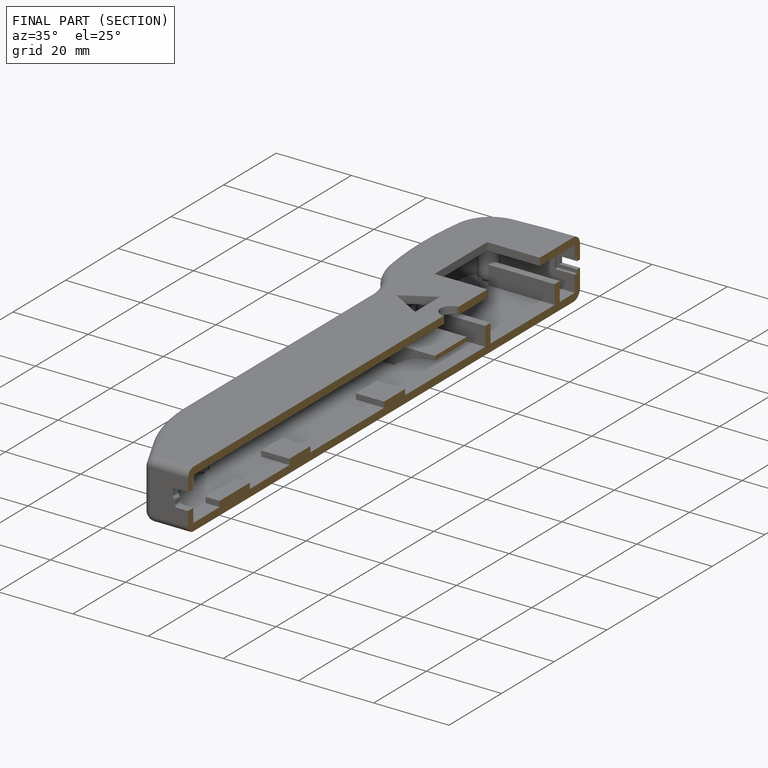
[diagram: finished part — half-section view (interior)]
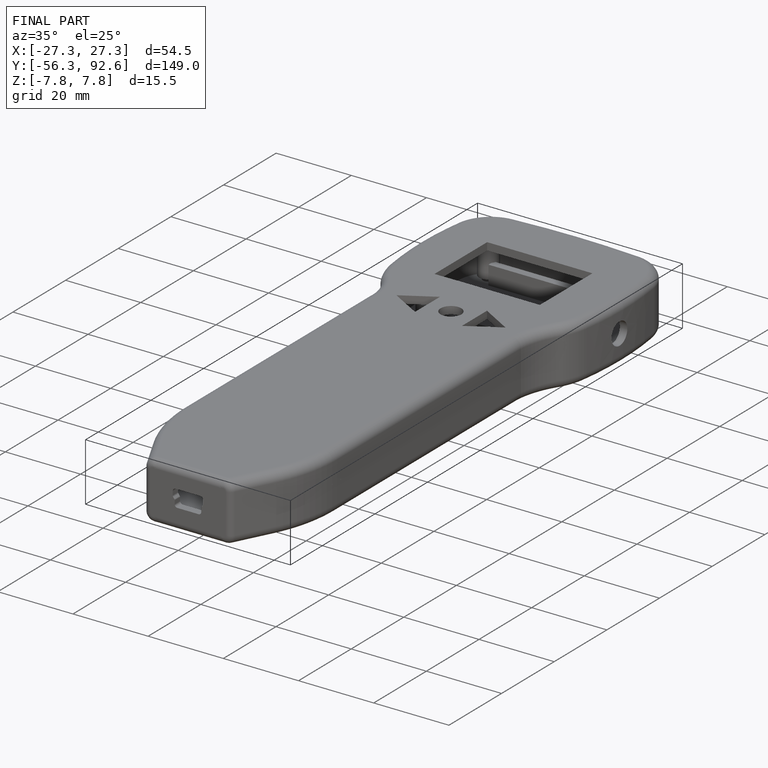
[diagram: finished part — iso view with bounding-box wireframe]
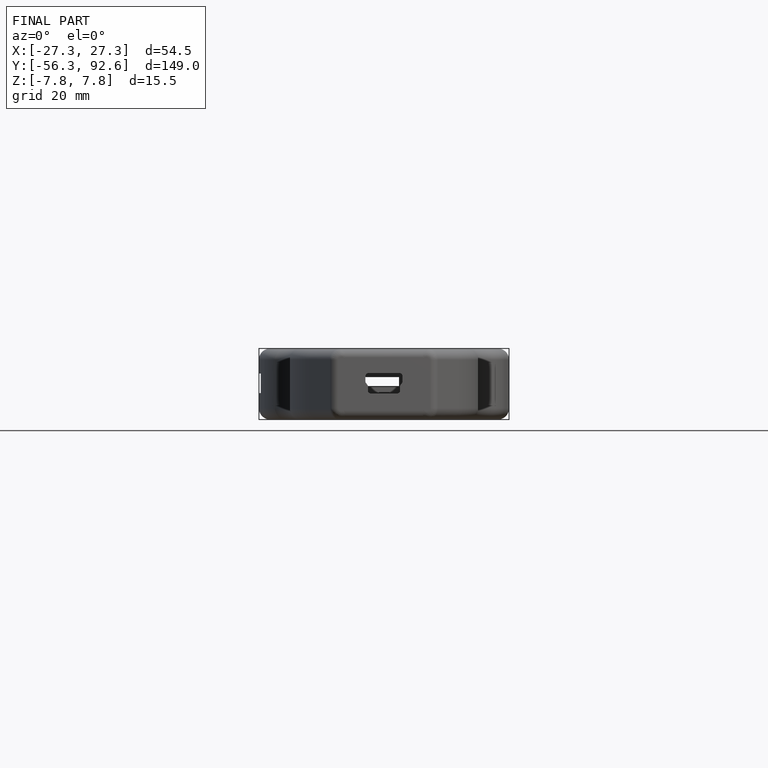
[diagram: finished part — front view with bounding-box wireframe]
